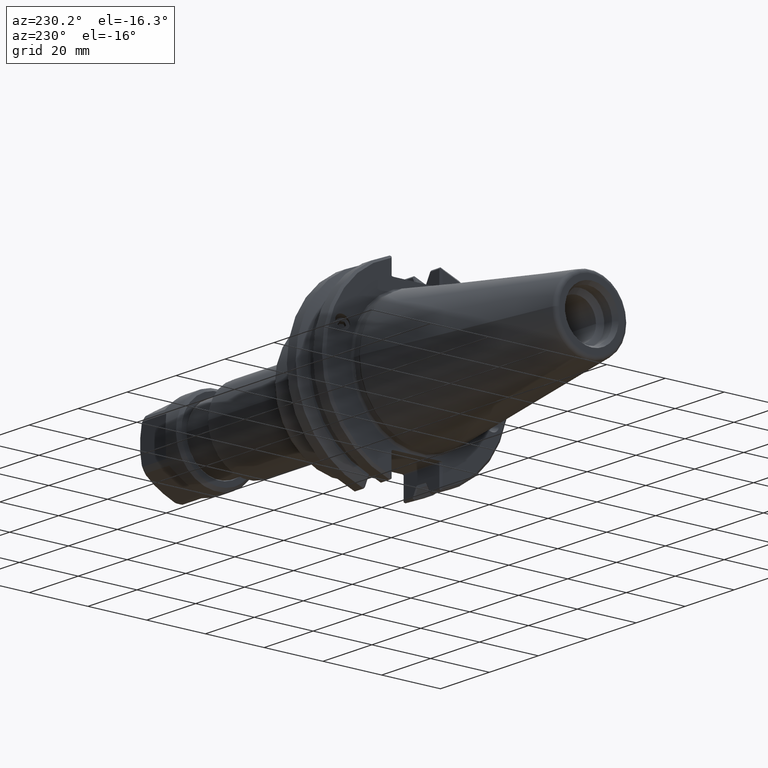
[diagram: clean part render]
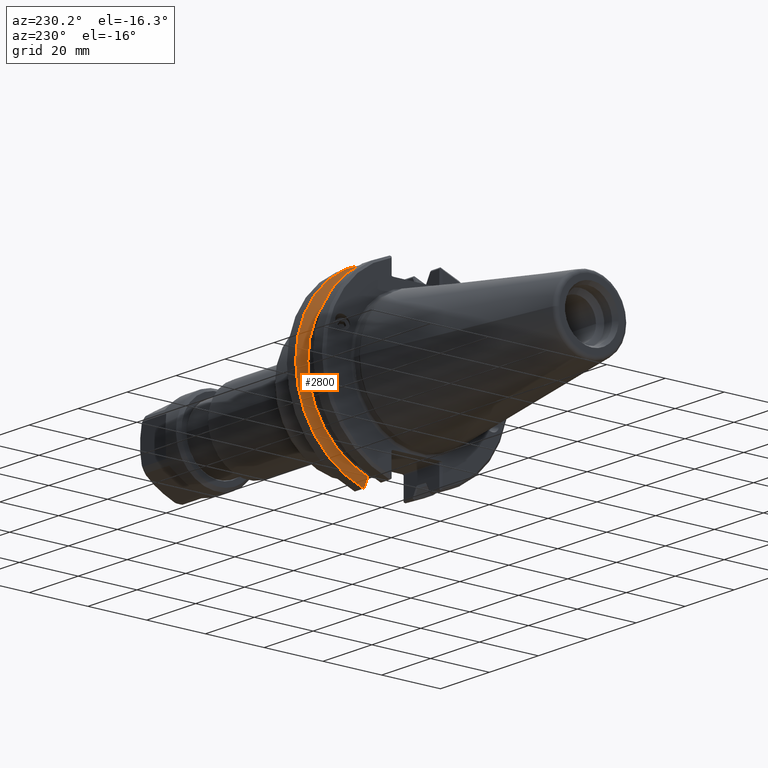
[diagram: same view with one face highlighted and labeled with its STEP entity id]
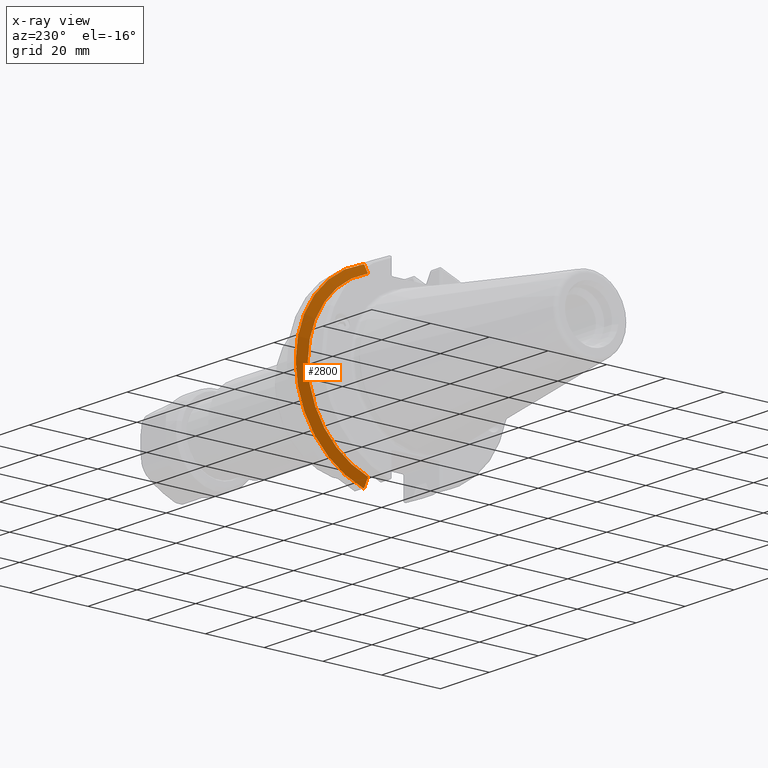
[diagram: x-ray of the same camera — body ghosted, the highlighted face saturated]
A machine part, auxiliary view. The second image highlights one B-rep face of the part: STEP entity #2800.
The next image is the same camera in x-ray: the body ghosted, the highlighted face saturated — about 0% of this face is hidden behind the body in this view.
In plain terms, the highlighted conical surface has half-angle 60 deg.
Its self-contained STEP definition (entity closure, byte-faithful):
#63=(
BOUNDED_CURVE()
B_SPLINE_CURVE(2,(#5305,#5306,#5307),.UNSPECIFIED.,.F.,.F.)
B_SPLINE_CURVE_WITH_KNOTS((3,3),(0.,0.0246703220901743),.UNSPECIFIED.)
CURVE()
GEOMETRIC_REPRESENTATION_ITEM()
RATIONAL_B_SPLINE_CURVE((1.,1.0000973924858,1.0001815070336))
REPRESENTATION_ITEM('')
);
#75=(
BOUNDED_CURVE()
B_SPLINE_CURVE(2,(#5633,#5634,#5635),.UNSPECIFIED.,.F.,.F.)
B_SPLINE_CURVE_WITH_KNOTS((3,3),(0.337238883118879,0.361909205209091),
 .UNSPECIFIED.)
CURVE()
GEOMETRIC_REPRESENTATION_ITEM()
RATIONAL_B_SPLINE_CURVE((1.00018150703351,1.00009739248575,1.))
REPRESENTATION_ITEM('')
);
#394=CONICAL_SURFACE('',#3059,1.28590991798633,60.0000000000093);
#742=FACE_OUTER_BOUND('',#968,.T.);
#968=EDGE_LOOP('',(#2292,#2293,#2294,#2295,#2296,#2297));
#1103=CIRCLE('',#2954,1.14031983597204);
#1125=CIRCLE('',#3039,1.25);
#1201=B_SPLINE_CURVE_WITH_KNOTS('',3,(#4653,#4654,#4655,#4656,#4657,#4658,
#4659,#4660,#4661,#4662,#4663,#4664,#4665,#4666,#4667,#4668,#4669,#4670,
#4671,#4672,#4673),.UNSPECIFIED.,.F.,.F.,(4,1,2,2,2,2,1,2,2,2,1,4),(-0.266790668116541,
-0.258089161816121,-0.237293672557327,-0.216372800268526,-0.19532535985493,
-0.174150151866704,-0.109845707830404,-0.0663145837076265,-0.0443467487449413,
-0.0222423284596035,0.,0.0409037005549332),.UNSPECIFIED.);
#1215=B_SPLINE_CURVE_WITH_KNOTS('',3,(#5252,#5253,#5254,#5255,#5256,#5257,
#5258,#5259,#5260,#5261,#5262,#5263,#5264,#5265,#5266,#5267,#5268,#5269,
#5270,#5271,#5272),.UNSPECIFIED.,.F.,.F.,(4,1,2,2,2,1,2,2,2,2,1,4),(-0.298992862371045,
-0.258089161816079,-0.235846833356795,-0.213742413071707,-0.191774578109205,
-0.148243453986607,-0.0839390099501844,-0.0627638019618215,-0.0417163615480511,
-0.0207954892590391,0.,0.00870150624893228),.UNSPECIFIED.);
#1294=VERTEX_POINT('',#4616);
#1297=VERTEX_POINT('',#4646);
#1301=VERTEX_POINT('',#4681);
#1329=VERTEX_POINT('',#5245);
#1333=VERTEX_POINT('',#5303);
#1386=VERTEX_POINT('',#5632);
#1568=EDGE_CURVE('',#1297,#1294,#1201,.T.);
#1573=EDGE_CURVE('',#1301,#1297,#1103,.T.);
#1610=EDGE_CURVE('',#1329,#1301,#1215,.T.);
#1616=EDGE_CURVE('',#1333,#1329,#63,.T.);
#1701=EDGE_CURVE('',#1294,#1386,#75,.T.);
#1720=EDGE_CURVE('',#1386,#1333,#1125,.T.);
#2292=ORIENTED_EDGE('',*,*,#1568,.F.);
#2293=ORIENTED_EDGE('',*,*,#1573,.F.);
#2294=ORIENTED_EDGE('',*,*,#1610,.F.);
#2295=ORIENTED_EDGE('',*,*,#1616,.F.);
#2296=ORIENTED_EDGE('',*,*,#1720,.F.);
#2297=ORIENTED_EDGE('',*,*,#1701,.F.);
#2800=ADVANCED_FACE('',(#742),#394,.T.);
#2954=AXIS2_PLACEMENT_3D('',#4688,#3366,#3367);
#3039=AXIS2_PLACEMENT_3D('',#5687,#3605,#3606);
#3059=AXIS2_PLACEMENT_3D('',#5717,#3645,#3646);
#3366=DIRECTION('center_axis',(-1.,1.62451355720802E-13,0.));
#3367=DIRECTION('ref_axis',(1.62482077846342E-13,1.,0.));
#3605=DIRECTION('center_axis',(1.,1.16523256636576E-36,0.));
#3606=DIRECTION('ref_axis',(1.62451355720802E-13,1.,0.));
#3645=DIRECTION('center_axis',(1.,-1.62451355720802E-13,0.));
#3646=DIRECTION('ref_axis',(1.62482077846342E-13,1.,0.));
#4616=CARTESIAN_POINT('',(0.572602036335382,0.333205733277213,-1.19655338963434));
#4646=CARTESIAN_POINT('',(0.513849999980947,0.333149715440169,-1.09056893196913));
#4653=CARTESIAN_POINT('Ctrl Pts',(0.513849999923697,0.333149715432218,-1.09056893200221));
#4654=CARTESIAN_POINT('Ctrl Pts',(0.514402236843377,0.33315013674625,-1.09156894051604));
#4655=CARTESIAN_POINT('Ctrl Pts',(0.516274416263426,0.333151576022003,-1.09495874351342));
#4656=CARTESIAN_POINT('Ctrl Pts',(0.518147156462469,0.333153052572383,-1.09834821630042));
#4657=CARTESIAN_POINT('Ctrl Pts',(0.520796243534551,0.333155177367736,-1.10314148193031));
#4658=CARTESIAN_POINT('Ctrl Pts',(0.522125045147164,0.333156261404838,-1.10554515500591));
#4659=CARTESIAN_POINT('Ctrl Pts',(0.524791232945189,0.333158472435346,-1.11036672172917));
#4660=CARTESIAN_POINT('Ctrl Pts',(0.52612862242336,0.333159599648494,-1.11278461344078));
#4661=CARTESIAN_POINT('Ctrl Pts',(0.528812061942959,0.33316189714961,-1.11763475532025));
#4662=CARTESIAN_POINT('Ctrl Pts',(0.53015811526045,0.333163067656863,-1.12006700355467));
#4663=CARTESIAN_POINT('Ctrl Pts',(0.535592919839949,0.333167865321449,-1.12988481558204));
#4664=CARTESIAN_POINT('Ctrl Pts',(0.542453265557426,0.333174195712283,-1.14226788346407));
#4665=CARTESIAN_POINT('Ctrl Pts',(0.549320194175227,0.333180969511324,-1.15464707005216));
#4666=CARTESIAN_POINT('Ctrl Pts',(0.553492698924098,0.333185189046669,-1.16216522853432));
#4667=CARTESIAN_POINT('Ctrl Pts',(0.554892387431778,0.333186622043152,-1.16468660436788));
#4668=CARTESIAN_POINT('Ctrl Pts',(0.557700985535292,0.333189532057464,-1.16974472683531));
#4669=CARTESIAN_POINT('Ctrl Pts',(0.559109898355524,0.333191009293555,-1.1722814715704));
#4670=CARTESIAN_POINT('Ctrl Pts',(0.561937029401764,0.333194007938171,-1.17737048354788));
#4671=CARTESIAN_POINT('Ctrl Pts',(0.565963363830785,0.333198327842733,-1.18461637151524));
#4672=CARTESIAN_POINT('Ctrl Pts',(0.569991755826532,0.33320278755588,-1.19186104554487));
#4673=CARTESIAN_POINT('Ctrl Pts',(0.572602036335382,0.333205733277213,-1.19655338963434));
#4681=CARTESIAN_POINT('',(0.513849999996042,0.333149715436341,1.09056893198396));
#4688=CARTESIAN_POINT('Origin',(0.513849999999605,-3.01729025547967E-13,
0.));
#5245=CARTESIAN_POINT('',(0.572602036335381,0.333205733277193,1.19655338963434));
#5252=CARTESIAN_POINT('Ctrl Pts',(0.572602036335381,0.333205733277193,1.19655338963434));
#5253=CARTESIAN_POINT('Ctrl Pts',(0.569991755826528,0.333202787555861,1.19186104554487));
#5254=CARTESIAN_POINT('Ctrl Pts',(0.565963363830799,0.333198327842715,1.18461637151527));
#5255=CARTESIAN_POINT('Ctrl Pts',(0.561937029401796,0.333194007938153,1.17737048354795));
#5256=CARTESIAN_POINT('Ctrl Pts',(0.559109898355592,0.333191009293537,1.17228147157052));
#5257=CARTESIAN_POINT('Ctrl Pts',(0.557700985535376,0.333189532057446,1.16974472683547));
#5258=CARTESIAN_POINT('Ctrl Pts',(0.55489238743189,0.333186622043134,1.16468660436809));
#5259=CARTESIAN_POINT('Ctrl Pts',(0.553492698924221,0.333185189046651,1.16216522853454));
#5260=CARTESIAN_POINT('Ctrl Pts',(0.549320194175374,0.333180969511306,1.15464707005243));
#5261=CARTESIAN_POINT('Ctrl Pts',(0.542453265557576,0.333174195712265,1.14226788346435));
#5262=CARTESIAN_POINT('Ctrl Pts',(0.535592919840103,0.333167865321428,1.12988481558232));
#5263=CARTESIAN_POINT('Ctrl Pts',(0.530158115260589,0.333163067656843,1.12006700355492));
#5264=CARTESIAN_POINT('Ctrl Pts',(0.528812061943088,0.33316189714959,1.11763475532049));
#5265=CARTESIAN_POINT('Ctrl Pts',(0.52612862242347,0.333159599648474,1.11278461344098));
#5266=CARTESIAN_POINT('Ctrl Pts',(0.524791232945288,0.333158472435326,1.11036672172935));
#5267=CARTESIAN_POINT('Ctrl Pts',(0.522125045147238,0.333156261404818,1.10554515500605));
#5268=CARTESIAN_POINT('Ctrl Pts',(0.520796243534612,0.333155177367716,1.10314148193042));
#5269=CARTESIAN_POINT('Ctrl Pts',(0.518147156462501,0.333153052572364,1.09834821630049));
#5270=CARTESIAN_POINT('Ctrl Pts',(0.516274416266711,0.333151576021986,1.09495874351938));
#5271=CARTESIAN_POINT('Ctrl Pts',(0.514402236849914,0.333150136746236,1.09156894052788));
#5272=CARTESIAN_POINT('Ctrl Pts',(0.513849999933501,0.333149715432206,1.09056893201997));
#5303=CARTESIAN_POINT('',(0.577173872225885,0.339628138321787,1.20297661143518));
#5305=CARTESIAN_POINT('Ctrl Pts',(0.577173872226091,0.33962813832193,1.20297661143533));
#5306=CARTESIAN_POINT('Ctrl Pts',(0.5748783971446,0.336406732121641,1.19975479555928));
#5307=CARTESIAN_POINT('Ctrl Pts',(0.572602036335381,0.333205733277193,1.19655338963434));
#5632=CARTESIAN_POINT('',(0.577173872225885,0.339628138321787,-1.20297661143518));
#5633=CARTESIAN_POINT('Ctrl Pts',(0.572602036335382,0.333205733277213,-1.19655338963434));
#5634=CARTESIAN_POINT('Ctrl Pts',(0.574878397144603,0.336406732121664,-1.19975479555928));
#5635=CARTESIAN_POINT('Ctrl Pts',(0.577173872226094,0.339628138321952,-1.20297661143533));
#5687=CARTESIAN_POINT('Origin',(0.577173872225885,-9.35479149211715E-37,
0.));
#5717=CARTESIAN_POINT('Origin',(0.597906473041862,-3.15384113550791E-13,
0.));